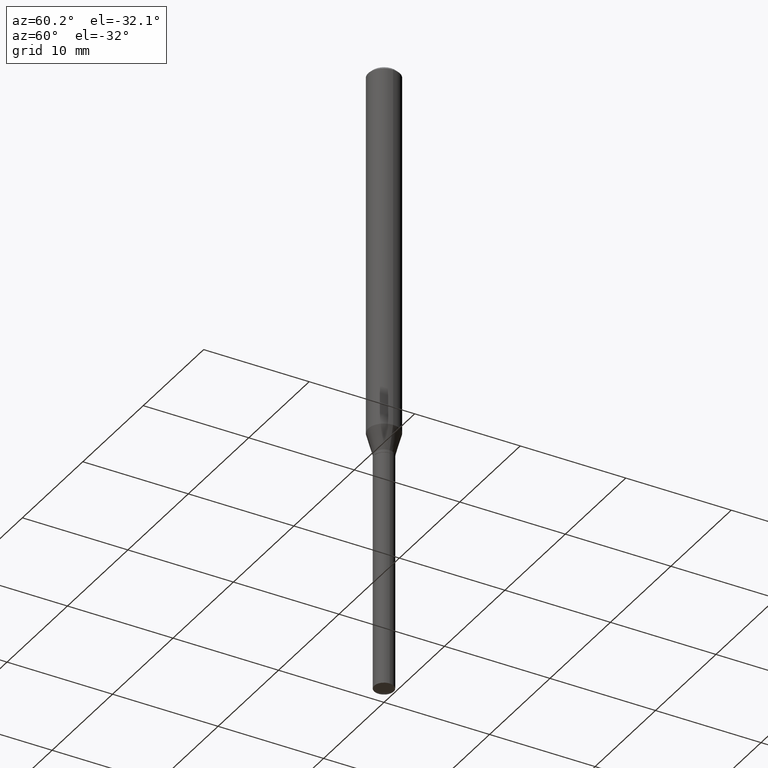
[diagram: clean part render]
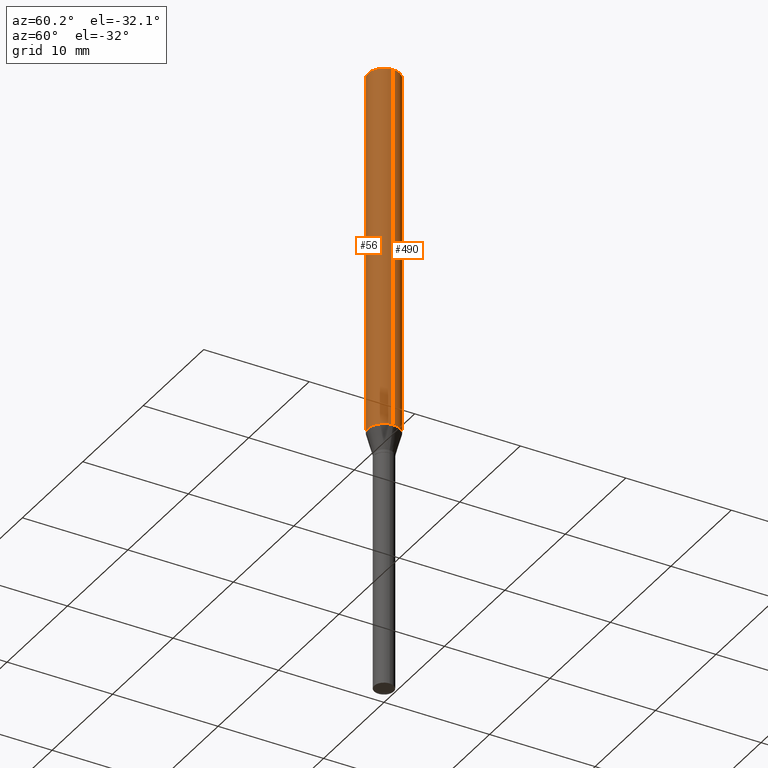
[diagram: same view with one multi-face feature highlighted, each face labeled with its STEP entity id]
A machine part, auxiliary view. The highlighted faces form ONE feature: a constant-radius fillet chain: 2 tangent blend faces with common blend radius 1.4999 mm. The faces share edges in the B-rep.
Their STEP definitions:
[1] entity #56 (Cylinder):
#5 = LINE ( 'NONE', #377, #486 ) ;
#37 = DIRECTION ( 'NONE',  ( -2.445468806185136877E-29, 3.491481338843145188E-15, 1.000000000000000000 ) ) ;
#49 = FACE_OUTER_BOUND ( 'NONE', #162, .T. ) ;
#56 = ADVANCED_FACE ( 'NONE', ( #49 ), #200, .T. ) ;
#57 = ORIENTED_EDGE ( 'NONE', *, *, #401, .T. ) ;
#61 = AXIS2_PLACEMENT_3D ( 'NONE', #195, #153, #416 ) ;
#62 = EDGE_CURVE ( 'NONE', #333, #353, #260, .T. ) ;
#93 = ORIENTED_EDGE ( 'NONE', *, *, #411, .F. ) ;
#135 = VERTEX_POINT ( 'NONE', #211 ) ;
#153 = DIRECTION ( 'NONE',  ( -2.445468806185136597E-29, 3.491481338843145583E-15, 1.000000000000000000 ) ) ;
#162 = EDGE_LOOP ( 'NONE', ( #263, #434, #57, #93 ) ) ;
#185 = DIRECTION ( 'NONE',  ( 1.000000000000000000, -6.982962677686268288E-15, 0.000000000000000000 ) ) ;
#187 = CARTESIAN_POINT ( 'NONE',  ( -0.05905000000000017180, -4.360852699566974684E-15, -1.369169049208564415 ) ) ;
#193 = CARTESIAN_POINT ( 'NONE',  ( 3.348260200233706475E-29, -4.780428185033314966E-15, -1.369169049208564415 ) ) ;
#195 = CARTESIAN_POINT ( 'NONE',  ( 0.000000000000000000, 0.000000000000000000, 0.000000000000000000 ) ) ;
#199 = AXIS2_PLACEMENT_3D ( 'NONE', #193, #317, #185 ) ;
#200 = CYLINDRICAL_SURFACE ( 'NONE', #61, 0.05905000000000008159 ) ;
#211 = CARTESIAN_POINT ( 'NONE',  ( 0.05905000000000000526, -4.535783407291119586E-16, -0.01181000000000007738 ) ) ;
#255 = CIRCLE ( 'NONE', #199, 0.05905000000000017180 ) ;
#260 = LINE ( 'NONE', #311, #354 ) ;
#262 = DIRECTION ( 'NONE',  ( 1.000000000000000000, -6.982962677686267499E-15, 0.000000000000000000 ) ) ;
#263 = ORIENTED_EDGE ( 'NONE', *, *, #62, .F. ) ;
#268 = CIRCLE ( 'NONE', #383, 0.05905000000000000526 ) ;
#304 = CARTESIAN_POINT ( 'NONE',  ( 0.05905000000000017180, -5.192772131150690675E-15, -1.369169049208564415 ) ) ;
#308 = CARTESIAN_POINT ( 'NONE',  ( 2.888098660104665518E-31, -4.123439461173782112E-17, -0.01181000000000007738 ) ) ;
#311 = CARTESIAN_POINT ( 'NONE',  ( -0.05905000000000008159, 4.195754854663397395E-16, -2.904631170795525745E-30 ) ) ;
#317 = DIRECTION ( 'NONE',  ( -2.445468806185136597E-29, 3.491481338843145583E-15, 1.000000000000000000 ) ) ;
#333 = VERTEX_POINT ( 'NONE', #187 ) ;
#344 = CARTESIAN_POINT ( 'NONE',  ( -0.05905000000000000526, -1.991255804356185277E-15, -0.01181000000000007738 ) ) ;
#353 = VERTEX_POINT ( 'NONE', #344 ) ;
#354 = VECTOR ( 'NONE', #414, 39.37007874015748143 ) ;
#366 = EDGE_CURVE ( 'NONE', #333, #438, #255, .T. ) ;
#377 = CARTESIAN_POINT ( 'NONE',  ( 0.05905000000000008159, -4.123439461173746736E-16, 2.879382386107504424E-30 ) ) ;
#383 = AXIS2_PLACEMENT_3D ( 'NONE', #308, #417, #262 ) ;
#401 = EDGE_CURVE ( 'NONE', #438, #135, #5, .T. ) ;
#411 = EDGE_CURVE ( 'NONE', #353, #135, #268, .T. ) ;
#414 = DIRECTION ( 'NONE',  ( -2.445468806185136877E-29, 3.491481338843145188E-15, 1.000000000000000000 ) ) ;
#416 = DIRECTION ( 'NONE',  ( 1.000000000000000000, -6.982962677686267499E-15, 4.876176775795936353E-29 ) ) ;
#417 = DIRECTION ( 'NONE',  ( -2.445468806185136597E-29, 3.491481338843145583E-15, 1.000000000000000000 ) ) ;
#434 = ORIENTED_EDGE ( 'NONE', *, *, #366, .T. ) ;
#438 = VERTEX_POINT ( 'NONE', #304 ) ;
#486 = VECTOR ( 'NONE', #37, 39.37007874015748143 ) ;
[2] entity #490 (Cylinder):
#3 = AXIS2_PLACEMENT_3D ( 'NONE', #489, #115, #110 ) ;
#5 = LINE ( 'NONE', #377, #486 ) ;
#32 = AXIS2_PLACEMENT_3D ( 'NONE', #266, #234, #342 ) ;
#37 = DIRECTION ( 'NONE',  ( -2.445468806185136877E-29, 3.491481338843145188E-15, 1.000000000000000000 ) ) ;
#62 = EDGE_CURVE ( 'NONE', #333, #353, #260, .T. ) ;
#63 = DIRECTION ( 'NONE',  ( -2.445468806185136597E-29, 3.491481338843145583E-15, 1.000000000000000000 ) ) ;
#103 = CARTESIAN_POINT ( 'NONE',  ( 2.888098660104665518E-31, -4.123439461173782112E-17, -0.01181000000000007738 ) ) ;
#110 = DIRECTION ( 'NONE',  ( 1.000000000000000000, -6.982962677686267499E-15, 4.876176775795936353E-29 ) ) ;
#115 = DIRECTION ( 'NONE',  ( -2.445468806185136597E-29, 3.491481338843145583E-15, 1.000000000000000000 ) ) ;
#120 = ORIENTED_EDGE ( 'NONE', *, *, #457, .T. ) ;
#135 = VERTEX_POINT ( 'NONE', #211 ) ;
#145 = AXIS2_PLACEMENT_3D ( 'NONE', #103, #63, #180 ) ;
#180 = DIRECTION ( 'NONE',  ( 1.000000000000000000, -6.982962677686267499E-15, 0.000000000000000000 ) ) ;
#187 = CARTESIAN_POINT ( 'NONE',  ( -0.05905000000000017180, -4.360852699566974684E-15, -1.369169049208564415 ) ) ;
#197 = ORIENTED_EDGE ( 'NONE', *, *, #62, .T. ) ;
#211 = CARTESIAN_POINT ( 'NONE',  ( 0.05905000000000000526, -4.535783407291119586E-16, -0.01181000000000007738 ) ) ;
#220 = CYLINDRICAL_SURFACE ( 'NONE', #3, 0.05905000000000008159 ) ;
#234 = DIRECTION ( 'NONE',  ( -2.445468806185136597E-29, 3.491481338843145583E-15, 1.000000000000000000 ) ) ;
#235 = EDGE_LOOP ( 'NONE', ( #120, #197, #248, #429 ) ) ;
#248 = ORIENTED_EDGE ( 'NONE', *, *, #485, .F. ) ;
#260 = LINE ( 'NONE', #311, #354 ) ;
#266 = CARTESIAN_POINT ( 'NONE',  ( 3.348260200233706475E-29, -4.780428185033314966E-15, -1.369169049208564415 ) ) ;
#294 = FACE_OUTER_BOUND ( 'NONE', #235, .T. ) ;
#304 = CARTESIAN_POINT ( 'NONE',  ( 0.05905000000000017180, -5.192772131150690675E-15, -1.369169049208564415 ) ) ;
#311 = CARTESIAN_POINT ( 'NONE',  ( -0.05905000000000008159, 4.195754854663397395E-16, -2.904631170795525745E-30 ) ) ;
#333 = VERTEX_POINT ( 'NONE', #187 ) ;
#342 = DIRECTION ( 'NONE',  ( 1.000000000000000000, -6.982962677686268288E-15, 0.000000000000000000 ) ) ;
#344 = CARTESIAN_POINT ( 'NONE',  ( -0.05905000000000000526, -1.991255804356185277E-15, -0.01181000000000007738 ) ) ;
#353 = VERTEX_POINT ( 'NONE', #344 ) ;
#354 = VECTOR ( 'NONE', #414, 39.37007874015748143 ) ;
#377 = CARTESIAN_POINT ( 'NONE',  ( 0.05905000000000008159, -4.123439461173746736E-16, 2.879382386107504424E-30 ) ) ;
#401 = EDGE_CURVE ( 'NONE', #438, #135, #5, .T. ) ;
#414 = DIRECTION ( 'NONE',  ( -2.445468806185136877E-29, 3.491481338843145188E-15, 1.000000000000000000 ) ) ;
#420 = CIRCLE ( 'NONE', #32, 0.05905000000000017180 ) ;
#429 = ORIENTED_EDGE ( 'NONE', *, *, #401, .F. ) ;
#438 = VERTEX_POINT ( 'NONE', #304 ) ;
#457 = EDGE_CURVE ( 'NONE', #438, #333, #420, .T. ) ;
#461 = CIRCLE ( 'NONE', #145, 0.05905000000000000526 ) ;
#485 = EDGE_CURVE ( 'NONE', #135, #353, #461, .T. ) ;
#486 = VECTOR ( 'NONE', #37, 39.37007874015748143 ) ;
#489 = CARTESIAN_POINT ( 'NONE',  ( 0.000000000000000000, 0.000000000000000000, 0.000000000000000000 ) ) ;
#490 = ADVANCED_FACE ( 'NONE', ( #294 ), #220, .T. ) ;